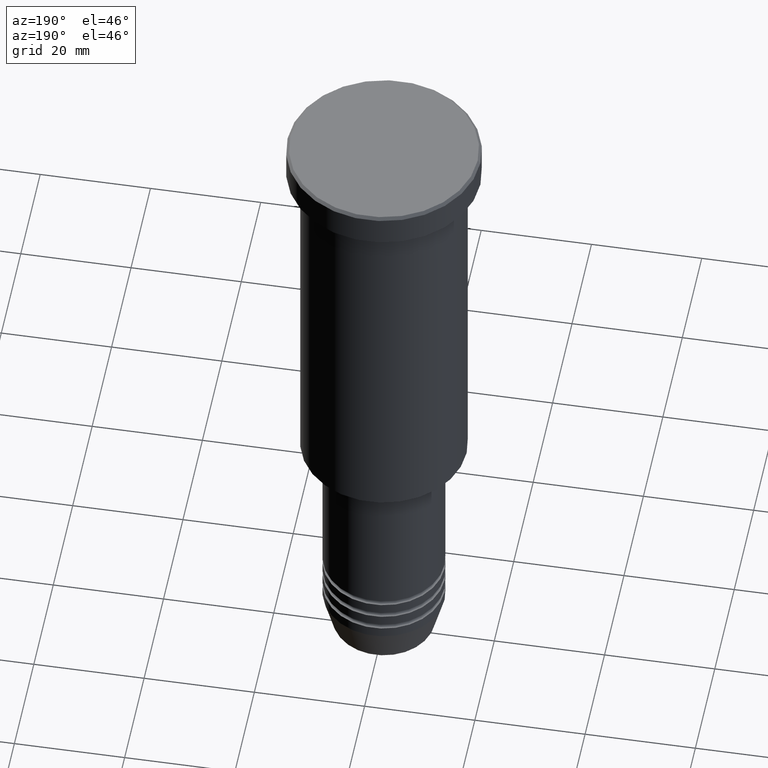
[diagram: clean part render]
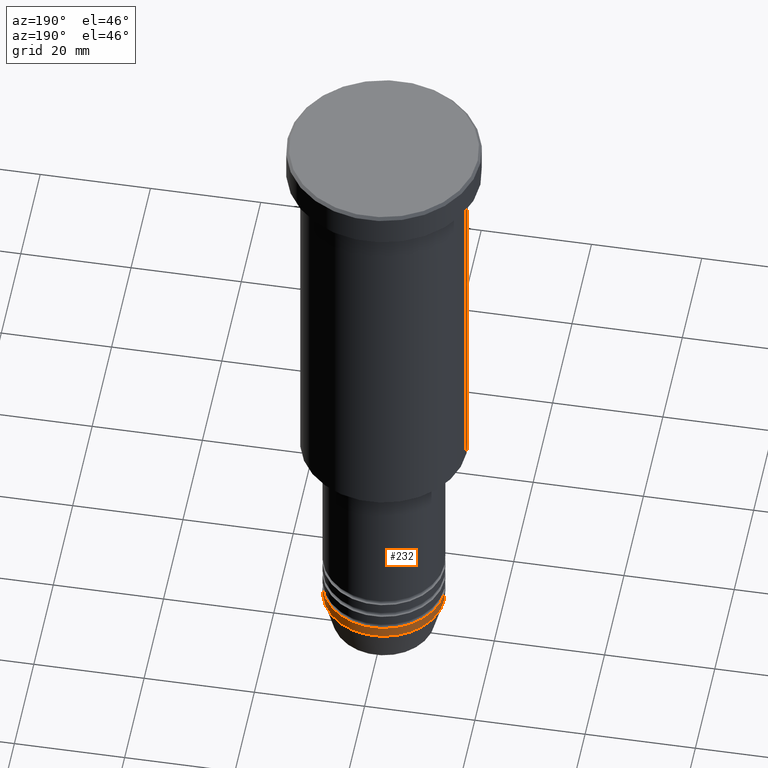
[diagram: same view with one face highlighted and labeled with its STEP entity id]
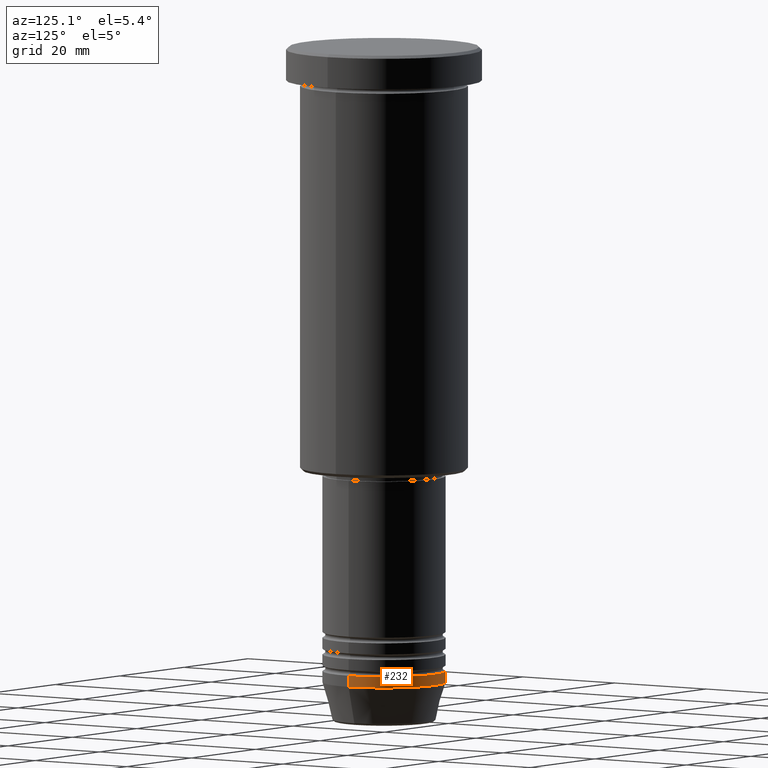
[diagram: same view with one face highlighted and labeled with its STEP entity id]
A machine part, auxiliary view. The second image highlights one B-rep face of the part: STEP entity #232.
A second angle (auxiliary view) of the same face is appended — the face is thin or edge-on in the first view.
In plain terms, the highlighted cylindrical surface (partial cylindrical patch) has radius 11 mm, axis along (-0, -0, 1).
Its self-contained STEP definition (entity closure, byte-faithful):
#27 = VERTEX_POINT ( 'NONE', #867 ) ;
#107 = CIRCLE ( 'NONE', #912, 11.00000000000000000 ) ;
#118 = ORIENTED_EDGE ( 'NONE', *, *, #360, .F. ) ;
#125 = ORIENTED_EDGE ( 'NONE', *, *, #543, .F. ) ;
#153 = CYLINDRICAL_SURFACE ( 'NONE', #588, 11.00000000000000000 ) ;
#184 = DIRECTION ( 'NONE',  ( 1.000000000000000000, 0.000000000000000000, 0.000000000000000000 ) ) ;
#232 = ADVANCED_FACE ( 'NONE', ( #1055 ), #153, .T. ) ;
#247 = DIRECTION ( 'NONE',  ( -0.000000000000000000, -0.000000000000000000, 1.000000000000000000 ) ) ;
#279 = CARTESIAN_POINT ( 'NONE',  ( 11.00000000000000000, 0.000000000000000000, -113.9999999999999858 ) ) ;
#283 = CARTESIAN_POINT ( 'NONE',  ( -11.00000000000000000, 1.347111479062088405E-15, 0.000000000000000000 ) ) ;
#344 = EDGE_CURVE ( 'NONE', #1160, #847, #447, .T. ) ;
#360 = EDGE_CURVE ( 'NONE', #27, #787, #107, .T. ) ;
#362 = DIRECTION ( 'NONE',  ( -0.000000000000000000, -0.000000000000000000, 1.000000000000000000 ) ) ;
#382 = ORIENTED_EDGE ( 'NONE', *, *, #344, .T. ) ;
#437 = CARTESIAN_POINT ( 'NONE',  ( 0.000000000000000000, 0.000000000000000000, 0.000000000000000000 ) ) ;
#447 = CIRCLE ( 'NONE', #1142, 11.00000000000000000 ) ;
#536 = LINE ( 'NONE', #642, #567 ) ;
#543 = EDGE_CURVE ( 'NONE', #1160, #27, #536, .T. ) ;
#557 = DIRECTION ( 'NONE',  ( -0.000000000000000000, -0.000000000000000000, 1.000000000000000000 ) ) ;
#567 = VECTOR ( 'NONE', #557, 1000.000000000000000 ) ;
#588 = AXIS2_PLACEMENT_3D ( 'NONE', #437, #247, #967 ) ;
#642 = CARTESIAN_POINT ( 'NONE',  ( 11.00000000000000000, 0.000000000000000000, 0.000000000000000000 ) ) ;
#677 = EDGE_LOOP ( 'NONE', ( #382, #702, #118, #125 ) ) ;
#702 = ORIENTED_EDGE ( 'NONE', *, *, #773, .T. ) ;
#773 = EDGE_CURVE ( 'NONE', #847, #787, #1089, .T. ) ;
#787 = VERTEX_POINT ( 'NONE', #1094 ) ;
#808 = DIRECTION ( 'NONE',  ( -0.000000000000000000, -0.000000000000000000, 1.000000000000000000 ) ) ;
#813 = DIRECTION ( 'NONE',  ( -0.000000000000000000, -0.000000000000000000, 1.000000000000000000 ) ) ;
#847 = VERTEX_POINT ( 'NONE', #1093 ) ;
#867 = CARTESIAN_POINT ( 'NONE',  ( 11.00000000000000000, 0.000000000000000000, -111.9999999999999858 ) ) ;
#912 = AXIS2_PLACEMENT_3D ( 'NONE', #1101, #813, #184 ) ;
#967 = DIRECTION ( 'NONE',  ( 1.000000000000000000, 0.000000000000000000, 0.000000000000000000 ) ) ;
#972 = CARTESIAN_POINT ( 'NONE',  ( 0.000000000000000000, 0.000000000000000000, -113.9999999999999858 ) ) ;
#1025 = VECTOR ( 'NONE', #362, 1000.000000000000000 ) ;
#1055 = FACE_OUTER_BOUND ( 'NONE', #677, .T. ) ;
#1089 = LINE ( 'NONE', #283, #1025 ) ;
#1093 = CARTESIAN_POINT ( 'NONE',  ( -11.00000000000000000, 1.347111479062088405E-15, -113.9999999999999858 ) ) ;
#1094 = CARTESIAN_POINT ( 'NONE',  ( -11.00000000000000000, 1.347111479062088405E-15, -111.9999999999999858 ) ) ;
#1101 = CARTESIAN_POINT ( 'NONE',  ( 0.000000000000000000, 0.000000000000000000, -111.9999999999999858 ) ) ;
#1142 = AXIS2_PLACEMENT_3D ( 'NONE', #972, #808, #1171 ) ;
#1160 = VERTEX_POINT ( 'NONE', #279 ) ;
#1171 = DIRECTION ( 'NONE',  ( 1.000000000000000000, 0.000000000000000000, 0.000000000000000000 ) ) ;